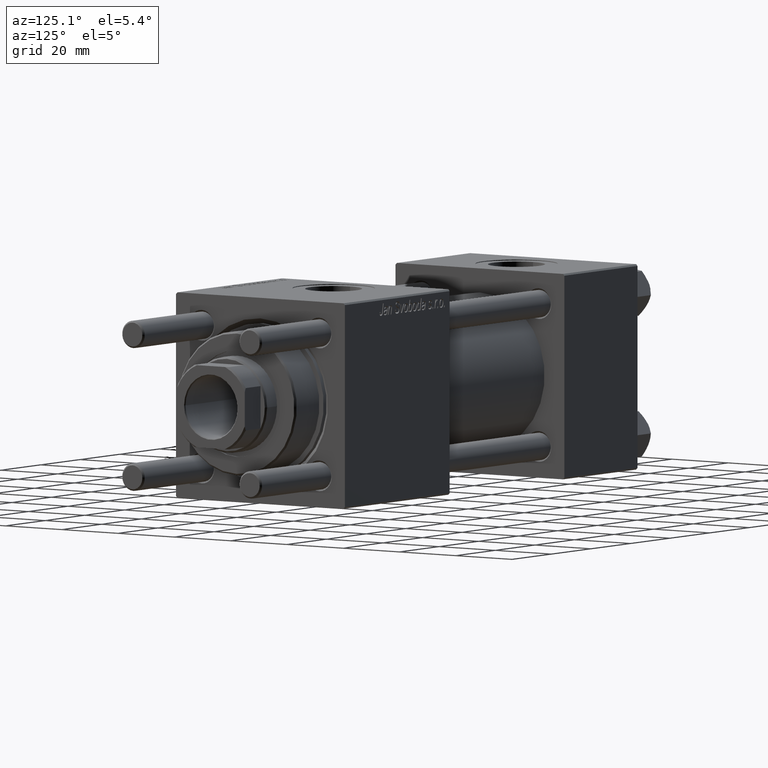
[diagram: clean part render]
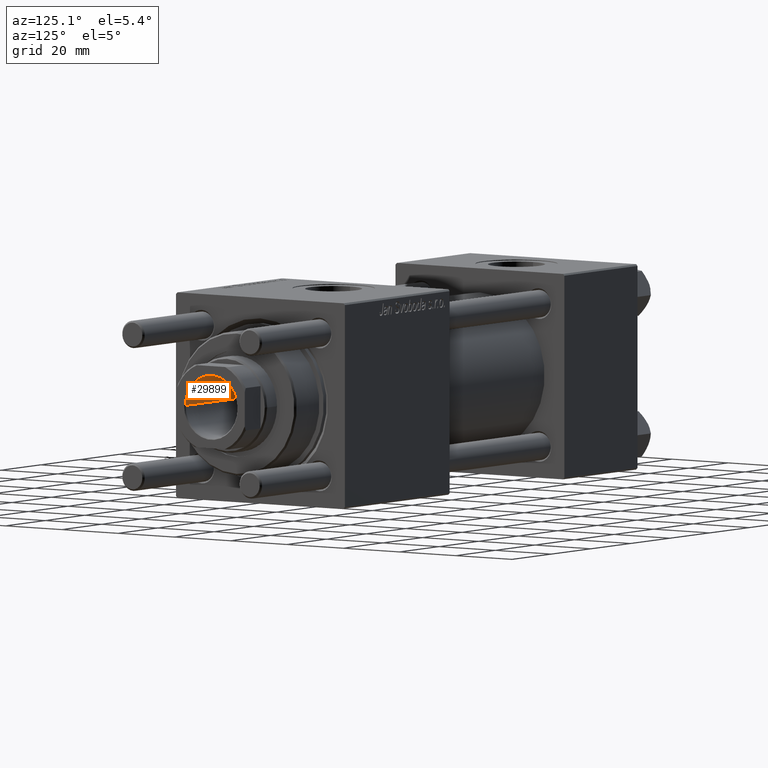
[diagram: same view with one face highlighted and labeled with its STEP entity id]
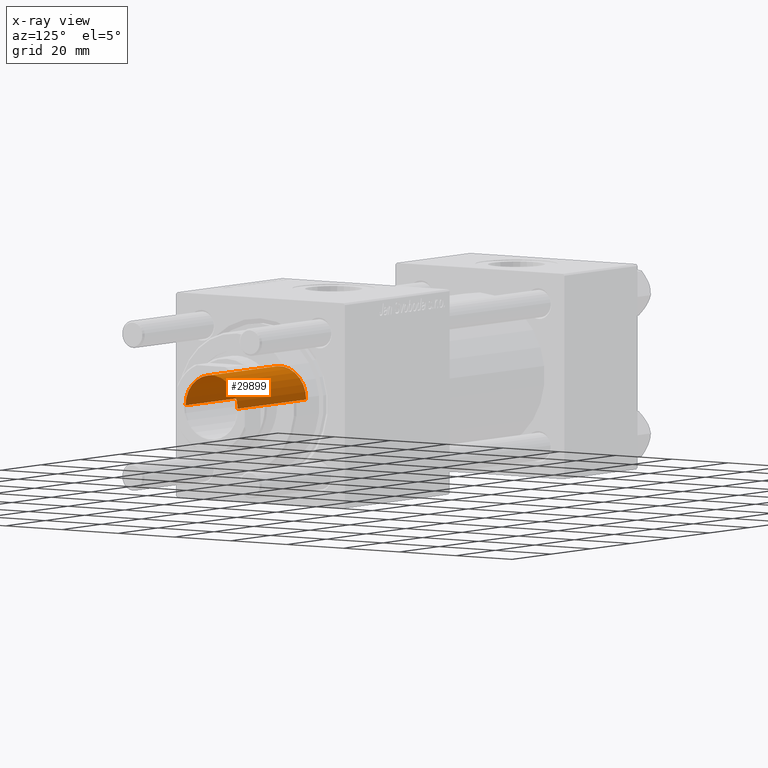
[diagram: x-ray of the same camera — body ghosted, the highlighted face saturated]
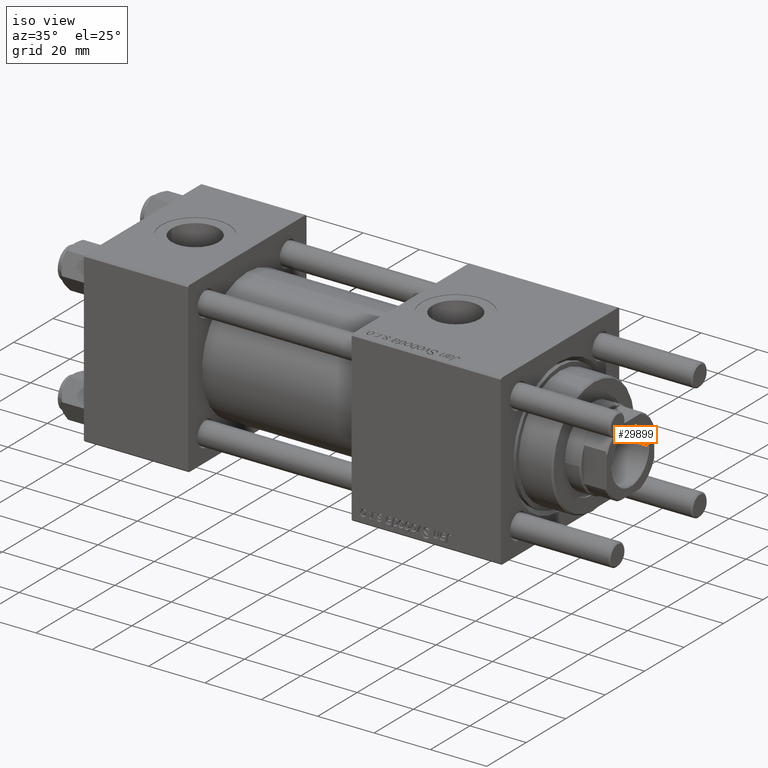
[diagram: same view with one face highlighted and labeled with its STEP entity id]
A machine part, auxiliary view. The second image highlights one B-rep face of the part: STEP entity #29899.
The next image is the same camera in x-ray: the body ghosted, the highlighted face saturated — about 0% of this face is hidden behind the body in this view.
A second angle (iso view) of the same face is appended — the face is thin or edge-on in the first view.
In plain terms, the highlighted cylindrical surface (edge-blend (fillet) strip) has radius 9.25 mm, axis along (1, 0, 0).
Its self-contained STEP definition (entity closure, byte-faithful):
#696 = DIRECTION ( 'NONE',  ( -0.000000000000000000, -0.000000000000000000, 1.000000000000000000 ) ) ;
#2728 = VERTEX_POINT ( 'NONE', #46675 ) ;
#2909 = VECTOR ( 'NONE', #15910, 1000.000000000000000 ) ;
#3035 = ORIENTED_EDGE ( 'NONE', *, *, #31939, .T. ) ;
#4594 = DIRECTION ( 'NONE',  ( 1.000000000000000000, 0.000000000000000000, 0.000000000000000000 ) ) ;
#5258 = ORIENTED_EDGE ( 'NONE', *, *, #29942, .F. ) ;
#5850 = CARTESIAN_POINT ( 'NONE',  ( 9.249999999999992895, 0.000000000000000000, 101.0000000000000000 ) ) ;
#7086 = DIRECTION ( 'NONE',  ( -0.000000000000000000, -0.000000000000000000, 1.000000000000000000 ) ) ;
#7113 = EDGE_LOOP ( 'NONE', ( #42634, #3035, #51311, #5258 ) ) ;
#8392 = AXIS2_PLACEMENT_3D ( 'NONE', #55842, #12181, #4594 ) ;
#9059 = EDGE_CURVE ( 'NONE', #15026, #15466, #55197, .T. ) ;
#12181 = DIRECTION ( 'NONE',  ( 0.000000000000000000, 0.000000000000000000, 1.000000000000000000 ) ) ;
#13371 = LINE ( 'NONE', #48386, #19390 ) ;
#14818 = AXIS2_PLACEMENT_3D ( 'NONE', #42972, #7086, #42132 ) ;
#15026 = VERTEX_POINT ( 'NONE', #51853 ) ;
#15466 = VERTEX_POINT ( 'NONE', #29814 ) ;
#15910 = DIRECTION ( 'NONE',  ( -0.000000000000000000, -0.000000000000000000, 1.000000000000000000 ) ) ;
#16555 = CYLINDRICAL_SURFACE ( 'NONE', #14818, 9.249999999999994671 ) ;
#19390 = VECTOR ( 'NONE', #696, 1000.000000000000000 ) ;
#23449 = AXIS2_PLACEMENT_3D ( 'NONE', #38833, #47714, #38549 ) ;
#24237 = CARTESIAN_POINT ( 'NONE',  ( -9.249999999999994671, 1.132798289211300909E-15, 136.0000000000000000 ) ) ;
#29814 = CARTESIAN_POINT ( 'NONE',  ( 9.249999999999994671, 0.000000000000000000, 135.7000000000000455 ) ) ;
#29842 = CIRCLE ( 'NONE', #23449, 9.249999999999992895 ) ;
#29899 = ADVANCED_FACE ( 'NONE', ( #46437 ), #16555, .F. ) ;
#29942 = EDGE_CURVE ( 'NONE', #38019, #15466, #13371, .T. ) ;
#31939 = EDGE_CURVE ( 'NONE', #2728, #15026, #41757, .T. ) ;
#38019 = VERTEX_POINT ( 'NONE', #5850 ) ;
#38549 = DIRECTION ( 'NONE',  ( 1.000000000000000000, 0.000000000000000000, 0.000000000000000000 ) ) ;
#38833 = CARTESIAN_POINT ( 'NONE',  ( 0.000000000000000000, 0.000000000000000000, 101.0000000000000000 ) ) ;
#41757 = LINE ( 'NONE', #24237, #2909 ) ;
#42132 = DIRECTION ( 'NONE',  ( 1.000000000000000000, 0.000000000000000000, 0.000000000000000000 ) ) ;
#42634 = ORIENTED_EDGE ( 'NONE', *, *, #43292, .F. ) ;
#42972 = CARTESIAN_POINT ( 'NONE',  ( 0.000000000000000000, 0.000000000000000000, 136.0000000000000000 ) ) ;
#43292 = EDGE_CURVE ( 'NONE', #2728, #38019, #29842, .T. ) ;
#46437 = FACE_OUTER_BOUND ( 'NONE', #7113, .T. ) ;
#46675 = CARTESIAN_POINT ( 'NONE',  ( -9.249999999999992895, 1.132798289211300712E-15, 101.0000000000000000 ) ) ;
#47714 = DIRECTION ( 'NONE',  ( -0.000000000000000000, -0.000000000000000000, 1.000000000000000000 ) ) ;
#48386 = CARTESIAN_POINT ( 'NONE',  ( 9.249999999999994671, 0.000000000000000000, 136.0000000000000000 ) ) ;
#51311 = ORIENTED_EDGE ( 'NONE', *, *, #9059, .T. ) ;
#51853 = CARTESIAN_POINT ( 'NONE',  ( -9.249999999999994671, 1.132798289211300909E-15, 135.7000000000000455 ) ) ;
#55197 = CIRCLE ( 'NONE', #8392, 9.249999999999994671 ) ;
#55842 = CARTESIAN_POINT ( 'NONE',  ( 0.000000000000000000, 0.000000000000000000, 135.7000000000000455 ) ) ;